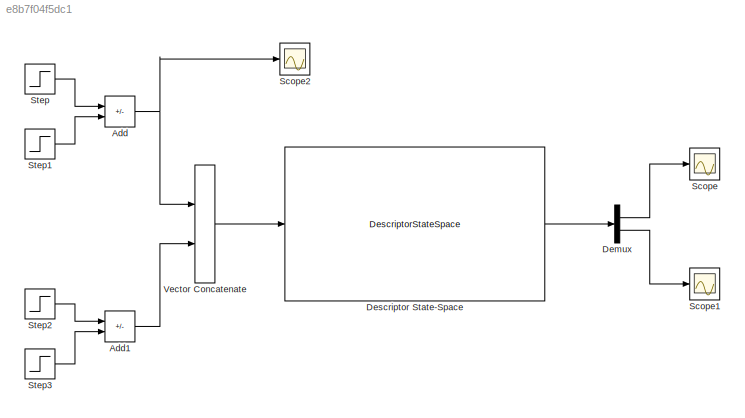
MODEL slx_e8b7f04f5dc1
KIND model
CONFIG AbsTol = auto
CONFIG EnableMultiTasking = off
CONFIG FixedStep = auto
CONFIG MaxStep = auto
CONFIG MinStep = auto
CONFIG RelTol = 1e-3
CONFIG SampleTimeConstraint = Unconstrained
CONFIG SolverName = VariableStepAuto
CONFIG StartTime = 0.0
CONFIG StopTime = 10.0
BLOCK [Sum] Add
  IconShape = rectangular
  Inputs = +-
  Ports = [2, 1]
BLOCK [Sum] Add1
  IconShape = rectangular
  Inputs = +-
  Ports = [2, 1]
BLOCK [Demux] Demux
  Outputs = 2
  Ports = [1, 2]
BLOCK [DescriptorStateSpace] Descriptor State-Space
  A = [-2.2422 0;0 -2.1672]
  B = [.3382 .3382;1.2219 -1.2219]
  C = [1 0;0 1]
  D = [0 0;0 0]
  E = [1 0;0 1]
  InitialCondition = [0;0]
  Ports = [1, 1]
BLOCK [Scope] Scope
  Floating = off
  NumInputPorts = 1
  Ports = [1]
  ScopeSpecificationString = Simulink.scopes.TimeScopeBlockCfg('CurrentConfiguration', extmgr.ConfigurationSet(extmgr.Configuration('Core','General UI',true),extmgr.Configuration('Core','Source UI',true),extmgr.Configuration('Sources','WiredSimulink',true),extmgr.Configuration('Visuals','Time Domain',true,'SerializedDisplays',{struct('MinYLimReal','-0.15082','MaxYLimReal','1.35735','YLabelReal','','MinYLimMag','0.00000','MaxY...<+1356ch>
BLOCK [Scope] Scope1
  Floating = off
  NumInputPorts = 1
  Ports = [1]
  ScopeSpecificationString = Simulink.scopes.TimeScopeBlockCfg('CurrentConfiguration', extmgr.ConfigurationSet(extmgr.Configuration('Core','General UI',true),extmgr.Configuration('Core','Source UI',true),extmgr.Configuration('Sources','WiredSimulink',true,'DataLoggingVariableName','ScopeData1'),extmgr.Configuration('Visuals','Time Domain',true,'SerializedDisplays',{struct('MinYLimReal','-1.26838','MaxYLimReal','0.14093','YLab...<+1395ch>
BLOCK [Scope] Scope2
  Floating = off
  NumInputPorts = 1
  Ports = [1]
  ScopeSpecificationString = Simulink.scopes.TimeScopeBlockCfg('CurrentConfiguration', extmgr.ConfigurationSet(extmgr.Configuration('Core','General UI',true),extmgr.Configuration('Core','Source UI',true),extmgr.Configuration('Sources','WiredSimulink',true,'DataLoggingVariableName','ScopeData1'),extmgr.Configuration('Visuals','Time Domain',true,'SerializedDisplays',{struct('MinYLimReal','-0.375','MaxYLimReal','3.375','YLabelRe...<+1379ch>
BLOCK [Step] Step
  After = 3
  SampleTime = 0
  Time = 0
BLOCK [Step] Step1
  After = 3
  SampleTime = 0
  Time = 4
BLOCK [Step] Step2
  After = 5
  SampleTime = 0
  Time = 0
BLOCK [Step] Step3
  After = 5
  SampleTime = 0
  Time = 4
BLOCK [Concatenate] Vector Concatenate
  Ports = [2, 1]
LINE Add1:1 -> Vector Concatenate:2
NET Add:1 -> Scope2:1, Vector Concatenate:1
LINE Demux:1 -> Scope:1
LINE Demux:2 -> Scope1:1
LINE Descriptor State-Space:1 -> Demux:1
LINE Step1:1 -> Add:2
LINE Step2:1 -> Add1:1
LINE Step3:1 -> Add1:2
LINE Step:1 -> Add:1
LINE Vector Concatenate:1 -> Descriptor State-Space:1
note: NET lines group one-source signal fan-out (src -> all destinations, sorted); 1:1 wires keep LINE
